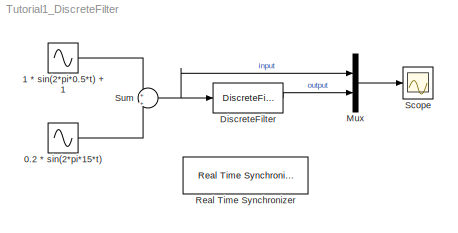
MODEL Tutorial1_DiscreteFilter
KIND model
BLOCK [Sin] 0.2 * sin(2*pi*15*t)
  Amplitude = 0.2
  Frequency = 2*pi*15
  Ports = [0, 1]
  SID = 4
  SampleTime = 0
BLOCK [Sin] 1 * sin(2*pi*0.5*t) + 1
  Bias = 1
  Frequency = 2*pi*0.5
  Ports = [0, 1]
  SID = 3
  SampleTime = 0
BLOCK [Reference] DiscreteFilter  REF=WBToolboxLibrary/Utilities/DiscreteFilter
  Fc = 2
  MultiThreadCoSim = auto
  Ports = [1, 1]
  SID = 2
  SourceBlock = WBToolboxLibrary/Utilities/DiscreteFilter
  SourceProductName = WholeBodyToolbox
  SourceType = DiscreteFilter
  Ts = 0.01
  denCoeffs = [0]
  filterType = FirstOrderLowPassFilter
  initStatus = off
  numCoeffs = [0]
  orderMedianFilter = 0
  u0 = [0]
  y0 = [0]
BLOCK [Mux] Mux
  DisplayOption = bar
  Inputs = 2
  Ports = [2, 1]
  SID = 7
BLOCK [Reference] Real Time Synchronizer  REF=WBToolboxLibrary/Utilities/Real Time Synchronizer
  MultiThreadCoSim = auto
  Ports = []
  SID = 10
  SourceBlock = WBToolboxLibrary/Utilities/Real Time Synchronizer
  SourceProductName = WholeBodyToolbox
  SourceType = Real Time Synchronizer
  period = 0.01
BLOCK [Scope] Scope
  Floating = off
  NumInputPorts = 1
  Ports = [1]
  SID = 6
  ScopeSpecificationString = Simulink.scopes.TimeScopeBlockCfg('CurrentConfiguration', extmgr.ConfigurationSet(extmgr.Configuration('Core','General UI',true),extmgr.Configuration('Core','Source UI',true),extmgr.Configuration('Sources','WiredSimulink',true),extmgr.Configuration('Visuals','Time Domain',true,'SerializedDisplays',{struct('MinYLimReal','-0.4853','MaxYLimReal','2.4853','YLabelReal','','MinYLimMag','0.00000','MaxYLi...<+1407ch>
BLOCK [Sum] Sum
  IconShape = round
  InputSameDT = off
  Inputs = +|+
  OutDataTypeStr = Inherit: Inherit via internal rule
  Ports = [2, 1]
  SID = 5
  SaturateOnIntegerOverflow = off
LINE 0.2 * sin(2*pi*15*t):1 -> Sum:2
LINE 1 * sin(2*pi*0.5*t) + 1:1 -> Sum:1
LINE DiscreteFilter:1 -> Mux:2
LINE Mux:1 -> Scope:1
NET Sum:1 -> DiscreteFilter:1, Mux:1
note: NET lines group one-source signal fan-out (src -> all destinations, sorted); 1:1 wires keep LINE
